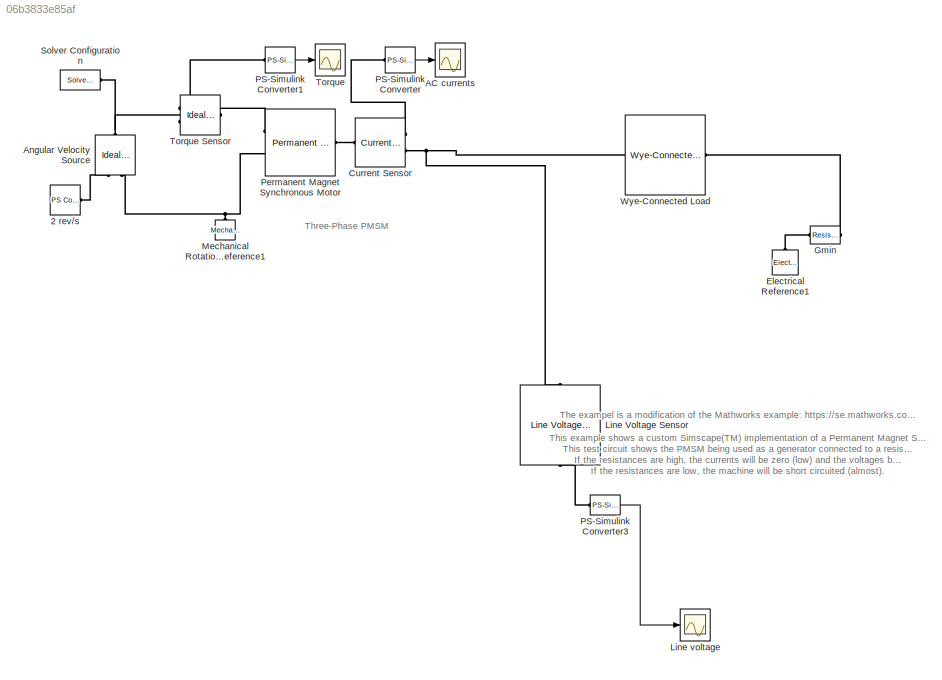
MODEL slx_06b3833e85af
KIND model
CONFIG AbsTol = 1e-4
CONFIG FixedStep = auto
CONFIG MaxStep = 1e-4
CONFIG MinStep = auto
CONFIG RelTol = 1e-4
CONFIG SampleTimeConstraint = Unconstrained
CONFIG Solver = ode23t
CONFIG SolverMode = Auto
CONFIG SolverName = ode23t
CONFIG StartTime = 0.0
CONFIG StopTime = 1
BLOCK [Reference] 2 rev//s  REF=fl_lib/Physical Signals/Sources/PS Constant
  ClassName = constant
  ComponentPath = foundation.physical_signal.sources.constant
  ComponentVariantNames = constant
  ComponentVariants = foundation.physical_signal.sources.constant
  LogSimulationData = off
  Ports = [0, 0, 0, 0, 0, 0, 1]
  SchemaVersion = 1
  SourceBlock = fl_lib/Physical Signals/Sources/PS Constant
  SourceFile = foundation.physical_signal.sources.constant
  SourceType = PS Constant
  constant = 2*pi*1000/60
  constant_conf = compiletime
  constant_unit = 1
BLOCK [Scope] AC currents
  DataFormat = StructureWithTime
  Decimation = 10
  Grid = on
  LimitDataPoints = on
  MaxDataPoints = 50000
  Ports = [1]
  SampleInput = off
  SampleTime = -1
  SaveName = ScopeData5
  SaveToWorkspace = off
  ShowLegends = off
  TickLabels = OneTimeTick
  TimeRange = 1
  YMax = 19.03083
  YMin = 18.82586
  ZoomMode = on
BLOCK [Reference] Angular Velocity Source  REF=fl_lib/Mechanical/Mechanical Sources/Ideal Angular
Velocity Source
  ClassName = angular_velocity
  ComponentPath = foundation.mechanical.sources.angular_velocity
  ComponentVariantNames = angular_velocity
  ComponentVariants = foundation.mechanical.sources.angular_velocity
  LogSimulationData = off
  Ports = [0, 0, 0, 0, 0, 1, 2]
  SchemaVersion = 1
  SourceBlock = fl_lib/Mechanical/Mechanical Sources/Ideal Angular\nVelocity Source
  SourceFile = foundation.mechanical.sources.angular_velocity
  SourceType = Ideal Angular\nVelocity Source
BLOCK [Reference] Current Sensor  REF=pe_lib/Sensors/Current Sensor
  ClassName = Simscape variant
  ComponentPath = pe.sensors.current.abc
  ComponentVariantNames = Composite three-phase ports, Expanded three-phase ports
  ComponentVariants = pe.sensors.current.abc, pe.sensors.current.Xabc
  LogSimulationData = off
  Ports = [0, 0, 0, 0, 0, 1, 2]
  SchemaVersion = 1
  SourceBlock = pe_lib/Sensors/Current Sensor
  SourceFile = pe.sensors.current.abc
  SourceType = Current Sensor
BLOCK [Reference] Electrical Reference1  REF=fl_lib/Electrical/Electrical Elements/Electrical Reference
  ClassName = reference
  ComponentPath = foundation.electrical.elements.reference
  ComponentVariantNames = reference
  ComponentVariants = foundation.electrical.elements.reference
  LogSimulationData = off
  Ports = [0, 0, 0, 0, 0, 1]
  SchemaVersion = 1
  SourceBlock = fl_lib/Electrical/Electrical Elements/Electrical Reference
  SourceFile = foundation.electrical.elements.reference
  SourceType = Electrical Reference
BLOCK [Reference] Gmin  REF=fl_lib/Electrical/Electrical Elements/Resistor
  ClassName = resistor
  ComponentPath = foundation.electrical.elements.resistor
  ComponentVariantNames = resistor
  ComponentVariants = foundation.electrical.elements.resistor
  LogSimulationData = off
  Ports = [0, 0, 0, 0, 0, 1, 1]
  R = 1e9
  R_conf = compiletime
  R_unit = Ohm
  SchemaVersion = 1
  SourceBlock = fl_lib/Electrical/Electrical Elements/Resistor
  SourceFile = foundation.electrical.elements.resistor
  SourceType = Resistor
  i = 0
  i_priority = High
  i_specify = off
  i_unit = A
  v = 0
  v_priority = High
  v_specify = off
  v_unit = V
BLOCK [Reference] Line Voltage Sensor  REF=pe_lib/Sensors/Line Voltage Sensor
  ClassName = Simscape variant
  ComponentPath = pe.sensors.voltage.line.abc
  ComponentVariantNames = Composite three-phase ports, Expanded three-phase ports
  ComponentVariants = pe.sensors.voltage.line.abc, pe.sensors.voltage.line.Xabc
  LogSimulationData = off
  Ports = [0, 0, 0, 0, 0, 1, 1]
  SchemaVersion = 1
  SourceBlock = pe_lib/Sensors/Line Voltage Sensor
  SourceFile = pe.sensors.voltage.line.abc
  SourceType = Line Voltage Sensor
BLOCK [Scope] Line voltage
  DataFormat = StructureWithTime
  Decimation = 10
  Grid = on
  LimitDataPoints = on
  MaxDataPoints = 50000
  Ports = [1]
  SampleInput = off
  SampleTime = -1
  SaveName = ScopeData3
  SaveToWorkspace = off
  ShowLegends = off
  TickLabels = OneTimeTick
  TimeRange = auto
  YMax = 137.13127
  YMin = 134.81406
  ZoomMode = on
BLOCK [Reference] Mechanical Rotational Reference1  REF=fl_lib/Mechanical/Rotational Elements/Mechanical
Rotational Reference
  ClassName = reference
  ComponentPath = foundation.mechanical.rotational.reference
  ComponentVariantNames = reference
  ComponentVariants = foundation.mechanical.rotational.reference
  LogSimulationData = off
  Ports = [0, 0, 0, 0, 0, 1]
  SchemaVersion = 1
  SourceBlock = fl_lib/Mechanical/Rotational Elements/Mechanical\nRotational Reference
  SourceFile = foundation.mechanical.rotational.reference
  SourceType = Mechanical\nRotational Reference
BLOCK [Reference] PS-Simulink Converter  REF=nesl_utility/PS-Simulink
Converter
  AffineConversion = off
  Frequencies = []
  LeftPortType = input
  PhysicalDomain = network_engine_domain
  Ports = [0, 1, 0, 0, 0, 1]
  PseudoPeriodic = off
  RightPortType = output
  SourceBlock = nesl_utility/PS-Simulink\nConverter
  SourceType = PS-Simulink\nConverter
  SubClassName = ps_output
BLOCK [Reference] PS-Simulink Converter1  REF=nesl_utility/PS-Simulink
Converter
  AffineConversion = off
  Frequencies = []
  LeftPortType = input
  PhysicalDomain = network_engine_domain
  Ports = [0, 1, 0, 0, 0, 1]
  PseudoPeriodic = off
  RightPortType = output
  SourceBlock = nesl_utility/PS-Simulink\nConverter
  SourceType = PS-Simulink\nConverter
  SubClassName = ps_output
BLOCK [Reference] PS-Simulink Converter3  REF=nesl_utility/PS-Simulink
Converter
  AffineConversion = off
  Frequencies = []
  LeftPortType = input
  PhysicalDomain = network_engine_domain
  Ports = [0, 1, 0, 0, 0, 1]
  PseudoPeriodic = off
  RightPortType = output
  SourceBlock = nesl_utility/PS-Simulink\nConverter
  SourceType = PS-Simulink\nConverter
  SubClassName = ps_output
BLOCK [Reference] Permanent Magnet Synchronous Motor  REF=ThreePhaseExamples_lib/Permanent Magnet
Synchronous Motor
  ClassName = pmsm
  ComponentPath = ThreePhaseExamples.pmsm
  ComponentVariantNames = pmsm
  ComponentVariants = ThreePhaseExamples.pmsm
  Ld = L
  Ld_conf = compiletime
  Ld_unit = H
  LogSimulationData = off
  Lq = L
  Lq_conf = compiletime
  Lq_unit = H
  Ports = [0, 0, 0, 0, 0, 1, 2]
  Rs = R
  Rs_conf = compiletime
  Rs_unit = Ohm
  SchemaVersion = 1
  SourceBlock = ThreePhaseExamples_lib/Permanent Magnet\nSynchronous Motor
  SourceFile = ThreePhaseExamples.pmsm
  SourceType = Permanent Magnet\nSynchronous Motor
  angular_position_diff = 0
  angular_position_diff_priority = None
  angular_position_diff_specify = off
  angular_position_diff_unit = rad
  i_d = 0
  i_d_priority = High
  i_d_specify = off
  i_d_unit = A
  i_q = 0
  i_q_priority = High
  i_q_specify = off
  i_q_unit = A
  nPolePairs = P/2
  nPolePairs_conf = compiletime
  nPolePairs_unit = 1
  pm_flux_linkage = psi
  pm_flux_linkage_conf = compiletime
  pm_flux_linkage_unit = Wb
  wNominal = 0
  wNominal_conf = compiletime
  wNominal_unit = rad/s
BLOCK [Reference] Solver Configuration  REF=nesl_utility/Solver
Configuration
  AbsTol = 1e-06
  Accelerate = off
  AutomaticFiltering = on
  DelaysMemoryBudget = 1024
  DoDC = off
  DoFixedCost = on
  EnableSwitchedLinearOptims = on
  FilteringTimeConstant = 0.001
  FrequencyDomain = off
  Harmonics = []
  LeftPortType = input
  LinearAlgebra = Sparse
  LocalSolverChoice = NE_BACKWARD_EULER_ADVANCER
  LocalSolverSampleTime = 1e-5
  MaxModeIter = 2
  MaxNonlinIter = 3
  MinStep = 1e-09
  NumHomotopyIterations = 100
  OverrideAbsTol = off
  PhasorMode = off
  PhasorModeNumHarmonics = 1
  PhysicalDomain = network_engine_domain
  Ports = [0, 0, 0, 0, 0, 0, 1]
  Profile = off
  RelTol = 0.001
  ResidualTolerance = 1e-9
  RevertToSquareIcSolve = off
  RightPortType = generic
  SimulateNoise = off
  SourceBlock = nesl_utility/Solver\nConfiguration
  SourceType = Solver\nConfiguration
  SubClassName = solver
  ToWorkspace = off
  Tones = []
  UseCCode = off
  UseLocalSampling = off
  UseLocalSolver = on
BLOCK [Scope] Torque
  DataFormat = StructureWithTime
  Decimation = 10
  Grid = on
  LimitDataPoints = on
  MaxDataPoints = 50000
  Ports = [1]
  SampleInput = off
  SampleTime = -1
  SaveName = ScopeData7
  SaveToWorkspace = off
  ShowLegends = off
  TickLabels = OneTimeTick
  TimeRange = 1
  YMax = 1
  YMin = 0
  ZoomMode = on
BLOCK [Reference] Torque Sensor  REF=fl_lib/Mechanical/Mechanical Sensors/Ideal Torque Sensor
  ClassName = torque
  ComponentPath = foundation.mechanical.sensors.torque
  ComponentVariantNames = torque
  ComponentVariants = foundation.mechanical.sensors.torque
  LogSimulationData = off
  Ports = [0, 0, 0, 0, 0, 1, 2]
  SchemaVersion = 1
  SourceBlock = fl_lib/Mechanical/Mechanical Sensors/Ideal Torque Sensor
  SourceFile = foundation.mechanical.sensors.torque
  SourceType = Ideal Torque Sensor
BLOCK [Reference] Wye-Connected Load  REF=pe_lib/Passive Devices/Wye-Connected Load
  C = 1e-6
  C_conf = compiletime
  C_unit = F
  ClassName = Simscape variant
  ComponentPath = pe.passive.wye.abc
  ComponentVariantNames = Composite three-phase ports, Expanded three-phase ports
  ComponentVariants = pe.passive.wye.abc, pe.passive.wye.Xabc
  FRated = 60
  FRated_conf = compiletime
  FRated_unit = Hz
  Freq0 = 60
  Freq0_conf = compiletime
  Freq0_unit = Hz
  G_parasitic = 1e-6
  G_parasitic_PQ = 1e-6
  G_parasitic_PQ_conf = compiletime
  G_parasitic_PQ_unit = 1/Ohm
  G_parasitic_conf = compiletime
  G_parasitic_unit = 1/Ohm
  IL0 = [ 0 0 0 ]
  IL0_conf = compiletime
  IL0_unit = A
  L = 0.001
  L_conf = compiletime
  L_unit = H
  LogSimulationData = off
  P = 1000
  P_conf = compiletime
  P_unit = W
  Ports = [0, 0, 0, 0, 0, 1, 1]
  Qneg = -100
  Qneg_conf = compiletime
  Qneg_unit = V*A
  Qpos = 100
  Qpos_conf = compiletime
  Qpos_unit = V*A
  R = 10000
  R_conf = compiletime
  R_parasitic = 1e-6
  R_parasitic_PQ = 1e-6
  R_parasitic_PQ_conf = compiletime
  R_parasitic_PQ_unit = Ohm
  R_parasitic_conf = compiletime
  R_parasitic_unit = Ohm
  R_unit = Ohm
  SchemaVersion = 1
  SourceBlock = pe_lib/Passive Devices/Wye-Connected Load
  SourceFile = pe.passive.wye.abc
  SourceType = Wye-Connected Load
  VC0 = [ 0 0 0 ]
  VC0_conf = compiletime
  VC0_unit = V
  VRated = 2.4e+4
  VRated_conf = compiletime
  VRated_unit = V
  Vang0 = 0
  Vang0_conf = compiletime
  Vang0_unit = deg
  Vmag0 = 2.4e+4
  Vmag0_conf = compiletime
  Vmag0_unit = V
  component_structure = 1
  component_structure_PQ = 1
  component_structure_PQ_conf = compiletime
  component_structure_PQ_unit = 1
  component_structure_conf = compiletime
  component_structure_unit = 1
  parameterization = 1
  parameterization_conf = compiletime
  parameterization_unit = 1
ANNOTATION (root): The exampel is a modification of the Mathworks example: https://se.mathworks.com/help/physmod/sps/examples/three-phase-custom-pmsm.html This example shows a custom Simscape(TM) implementation of a Permanent Magnet Synchronous Machine (PMSM). This test circuit shows the PMSM being used as a generator connected to a resistive Y - connected load. If the resistances are high, the currents will be zero...<+162ch>
ANNOTATION (root): Three-Phase PMSM
LINE PS-Simulink Converter1:1 -> Torque:1
LINE PS-Simulink Converter3:1 -> Line voltage:1
LINE PS-Simulink Converter:1 -> AC currents:1
PLINE 2 rev//s:RConn1 -- Angular Velocity Source:RConn1
PNET net1: Angular Velocity Source:LConn1 -- Solver Configuration:RConn1 -- Torque Sensor:LConn1
PNET net2: Angular Velocity Source:RConn2 -- Mechanical Rotational Reference1:LConn1 -- Permanent Magnet Synchronous Motor:RConn2
PLINE Current Sensor:LConn1 -- Permanent Magnet Synchronous Motor:LConn1
PLINE Current Sensor:RConn1 -- PS-Simulink Converter:LConn1
PNET net3: Current Sensor:RConn2 -- Line Voltage Sensor:LConn1 -- Wye-Connected Load:LConn1
PLINE Electrical Reference1:LConn1 -- Gmin:LConn1
PLINE Gmin:RConn1 -- Wye-Connected Load:RConn1
PLINE Line Voltage Sensor:RConn1 -- PS-Simulink Converter3:LConn1
PLINE PS-Simulink Converter1:LConn1 -- Torque Sensor:RConn2
PLINE Permanent Magnet Synchronous Motor:RConn1 -- Torque Sensor:RConn1
note: PNET lines group multi-terminal physical nets as a canonical sorted terminal list (undirected conserving connections); 2-terminal nets keep the pairwise PLINE form
